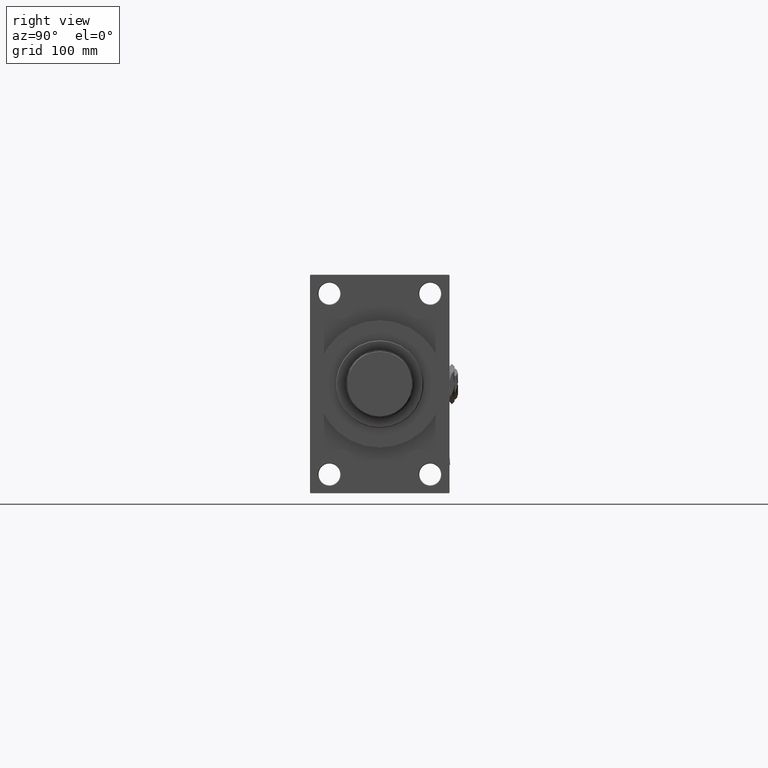
[diagram: clean part render]
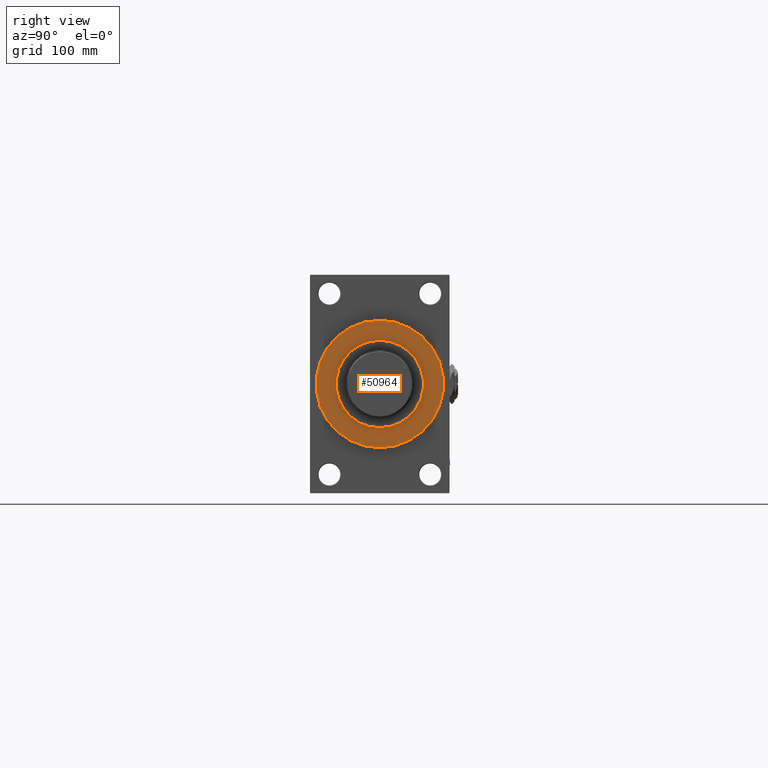
[diagram: same view with one face highlighted and labeled with its STEP entity id]
A machine part, right view. The second image highlights one B-rep face of the part: STEP entity #50964.
In plain terms, the highlighted planar face has unit normal (1, 0, 0).
Its self-contained STEP definition (entity closure, byte-faithful):
#222 = DIRECTION ( 'NONE',  ( 1.000000000000000000, 0.000000000000000000, 0.000000000000000000 ) ) ;
#393 = EDGE_CURVE ( 'NONE', #49564, #20645, #23865, .T. ) ;
#2058 = CARTESIAN_POINT ( 'NONE',  ( 458.9999999999999432, 6.429395695523603956E-15, -52.50000000000000000 ) ) ;
#2519 = ORIENTED_EDGE ( 'NONE', *, *, #6352, .T. ) ;
#2570 = AXIS2_PLACEMENT_3D ( 'NONE', #3016, #51201, #19761 ) ;
#3016 = CARTESIAN_POINT ( 'NONE',  ( 458.9999999999999432, 0.000000000000000000, 0.000000000000000000 ) ) ;
#3309 = CARTESIAN_POINT ( 'NONE',  ( 458.9999999999999432, 0.000000000000000000, 0.000000000000000000 ) ) ;
#6352 = EDGE_CURVE ( 'NONE', #10675, #37797, #8985, .T. ) ;
#8002 = ORIENTED_EDGE ( 'NONE', *, *, #9803, .T. ) ;
#8536 = ORIENTED_EDGE ( 'NONE', *, *, #393, .F. ) ;
#8934 = AXIS2_PLACEMENT_3D ( 'NONE', #3309, #19274, #35286 ) ;
#8985 = CIRCLE ( 'NONE', #27376, 52.50000000000000000 ) ;
#9803 = EDGE_CURVE ( 'NONE', #37797, #10675, #20722, .T. ) ;
#10395 = CARTESIAN_POINT ( 'NONE',  ( 458.9999999999999432, 0.000000000000000000, 0.000000000000000000 ) ) ;
#10446 = CARTESIAN_POINT ( 'NONE',  ( 458.9999999999999432, 4.408728476930470856E-15, 36.00000000000000000 ) ) ;
#10675 = VERTEX_POINT ( 'NONE', #24347 ) ;
#10714 = EDGE_LOOP ( 'NONE', ( #27006, #8536 ) ) ;
#12755 = CARTESIAN_POINT ( 'NONE',  ( 458.9999999999999432, 0.000000000000000000, 0.000000000000000000 ) ) ;
#13797 = AXIS2_PLACEMENT_3D ( 'NONE', #36125, #222, #24835 ) ;
#15082 = FACE_BOUND ( 'NONE', #10714, .T. ) ;
#19274 = DIRECTION ( 'NONE',  ( 1.000000000000000000, 0.000000000000000000, 0.000000000000000000 ) ) ;
#19761 = DIRECTION ( 'NONE',  ( 0.000000000000000000, 0.000000000000000000, -1.000000000000000000 ) ) ;
#20029 = EDGE_CURVE ( 'NONE', #20645, #49564, #47740, .T. ) ;
#20645 = VERTEX_POINT ( 'NONE', #43227 ) ;
#20722 = CIRCLE ( 'NONE', #34131, 52.50000000000000000 ) ;
#20895 = EDGE_LOOP ( 'NONE', ( #2519, #8002 ) ) ;
#23474 = PLANE ( 'NONE',  #8934 ) ;
#23865 = CIRCLE ( 'NONE', #13797, 36.00000000000000000 ) ;
#24347 = CARTESIAN_POINT ( 'NONE',  ( 458.9999999999999432, 0.000000000000000000, 52.50000000000000000 ) ) ;
#24835 = DIRECTION ( 'NONE',  ( 0.000000000000000000, 0.000000000000000000, -1.000000000000000000 ) ) ;
#26380 = DIRECTION ( 'NONE',  ( 0.000000000000000000, 0.000000000000000000, -1.000000000000000000 ) ) ;
#27006 = ORIENTED_EDGE ( 'NONE', *, *, #20029, .F. ) ;
#27376 = AXIS2_PLACEMENT_3D ( 'NONE', #12755, #28746, #37142 ) ;
#28746 = DIRECTION ( 'NONE',  ( 1.000000000000000000, 0.000000000000000000, 0.000000000000000000 ) ) ;
#30832 = DIRECTION ( 'NONE',  ( 1.000000000000000000, 0.000000000000000000, 0.000000000000000000 ) ) ;
#31077 = FACE_OUTER_BOUND ( 'NONE', #20895, .T. ) ;
#34131 = AXIS2_PLACEMENT_3D ( 'NONE', #10395, #30832, #26380 ) ;
#35286 = DIRECTION ( 'NONE',  ( 0.000000000000000000, 0.000000000000000000, -1.000000000000000000 ) ) ;
#36125 = CARTESIAN_POINT ( 'NONE',  ( 458.9999999999999432, 0.000000000000000000, 0.000000000000000000 ) ) ;
#37142 = DIRECTION ( 'NONE',  ( 0.000000000000000000, 0.000000000000000000, -1.000000000000000000 ) ) ;
#37797 = VERTEX_POINT ( 'NONE', #2058 ) ;
#43227 = CARTESIAN_POINT ( 'NONE',  ( 458.9999999999999432, 0.000000000000000000, -36.00000000000000000 ) ) ;
#47740 = CIRCLE ( 'NONE', #2570, 36.00000000000000000 ) ;
#49564 = VERTEX_POINT ( 'NONE', #10446 ) ;
#50964 = ADVANCED_FACE ( 'NONE', ( #15082, #31077 ), #23474, .T. ) ;
#51201 = DIRECTION ( 'NONE',  ( 1.000000000000000000, 0.000000000000000000, 0.000000000000000000 ) ) ;